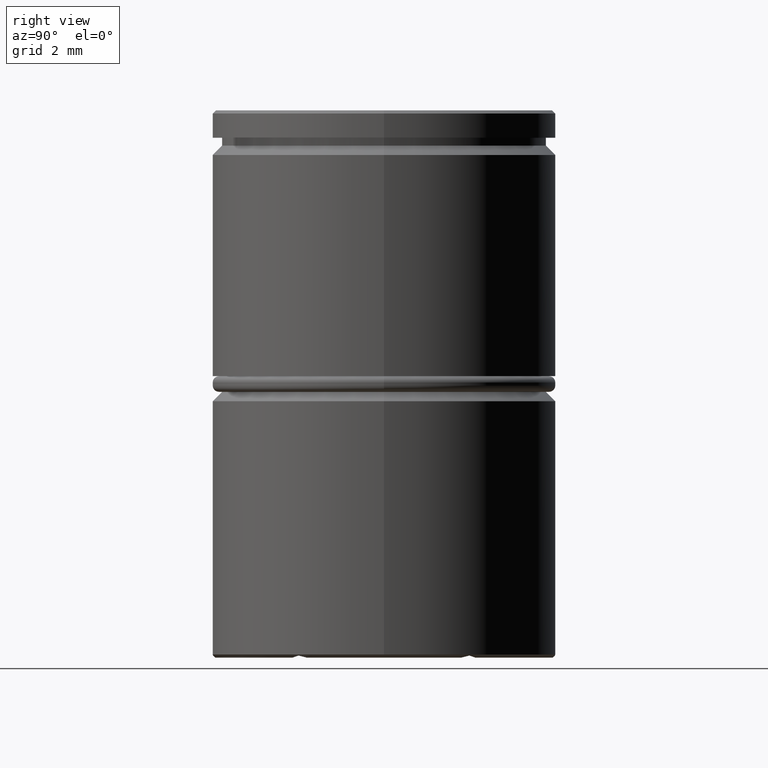
[diagram: clean part render]
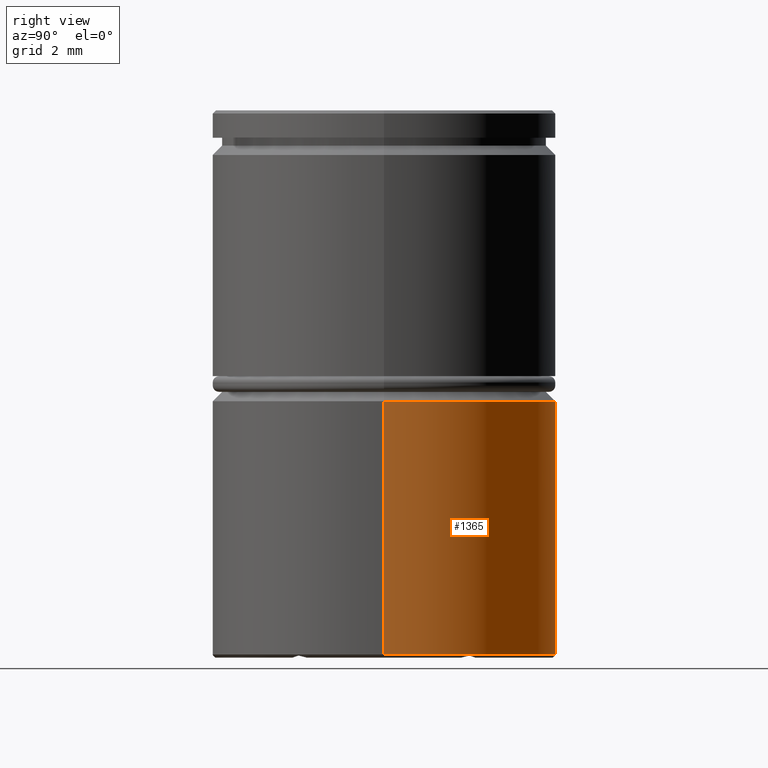
[diagram: same view with one face highlighted and labeled with its STEP entity id]
A machine part, right view. The second image highlights one B-rep face of the part: STEP entity #1365.
In plain terms, the highlighted cylindrical surface (partial cylindrical patch) has radius 5.5 mm, axis along (-0, -0, 1).
Its self-contained STEP definition (entity closure, byte-faithful):
#17 = VECTOR ( 'NONE', #810, 1000.000000000000000 ) ;
#37 = DIRECTION ( 'NONE',  ( -0.000000000000000000, -0.000000000000000000, 1.000000000000000000 ) ) ;
#82 = AXIS2_PLACEMENT_3D ( 'NONE', #429, #1035, #420 ) ;
#107 = VERTEX_POINT ( 'NONE', #663 ) ;
#158 = FACE_OUTER_BOUND ( 'NONE', #1224, .T. ) ;
#209 = VERTEX_POINT ( 'NONE', #1284 ) ;
#278 = CARTESIAN_POINT ( 'NONE',  ( 0.000000000000000000, 0.000000000000000000, 0.000000000000000000 ) ) ;
#389 = LINE ( 'NONE', #486, #17 ) ;
#420 = DIRECTION ( 'NONE',  ( 1.000000000000000000, 0.000000000000000000, 0.000000000000000000 ) ) ;
#429 = CARTESIAN_POINT ( 'NONE',  ( 0.000000000000000000, 0.000000000000000000, -9.299999999999998934 ) ) ;
#462 = ORIENTED_EDGE ( 'NONE', *, *, #919, .F. ) ;
#486 = CARTESIAN_POINT ( 'NONE',  ( 5.500000000000000000, 0.000000000000000000, 0.000000000000000000 ) ) ;
#505 = DIRECTION ( 'NONE',  ( -0.000000000000000000, -0.000000000000000000, 1.000000000000000000 ) ) ;
#522 = VERTEX_POINT ( 'NONE', #830 ) ;
#555 = VERTEX_POINT ( 'NONE', #961 ) ;
#604 = AXIS2_PLACEMENT_3D ( 'NONE', #278, #1221, #893 ) ;
#645 = DIRECTION ( 'NONE',  ( -1.000000000000000000, 0.000000000000000000, 0.000000000000000000 ) ) ;
#663 = CARTESIAN_POINT ( 'NONE',  ( -5.500000000000000000, 6.735557395310442023E-16, -17.40000000000000568 ) ) ;
#686 = CIRCLE ( 'NONE', #82, 5.500000000000000000 ) ;
#734 = LINE ( 'NONE', #855, #865 ) ;
#778 = AXIS2_PLACEMENT_3D ( 'NONE', #1300, #37, #645 ) ;
#810 = DIRECTION ( 'NONE',  ( -0.000000000000000000, -0.000000000000000000, 1.000000000000000000 ) ) ;
#830 = CARTESIAN_POINT ( 'NONE',  ( -5.500000000000000000, 6.735557395310442023E-16, -9.299999999999998934 ) ) ;
#855 = CARTESIAN_POINT ( 'NONE',  ( -5.500000000000000000, 6.735557395310442023E-16, 0.000000000000000000 ) ) ;
#865 = VECTOR ( 'NONE', #505, 1000.000000000000000 ) ;
#893 = DIRECTION ( 'NONE',  ( 1.000000000000000000, 0.000000000000000000, 0.000000000000000000 ) ) ;
#919 = EDGE_CURVE ( 'NONE', #209, #555, #389, .T. ) ;
#961 = CARTESIAN_POINT ( 'NONE',  ( 5.500000000000000000, 0.000000000000000000, -9.299999999999998934 ) ) ;
#990 = ORIENTED_EDGE ( 'NONE', *, *, #1050, .T. ) ;
#1004 = ORIENTED_EDGE ( 'NONE', *, *, #1049, .T. ) ;
#1035 = DIRECTION ( 'NONE',  ( 0.000000000000000000, 0.000000000000000000, -1.000000000000000000 ) ) ;
#1049 = EDGE_CURVE ( 'NONE', #522, #555, #686, .T. ) ;
#1050 = EDGE_CURVE ( 'NONE', #107, #522, #734, .T. ) ;
#1086 = ORIENTED_EDGE ( 'NONE', *, *, #1302, .T. ) ;
#1210 = CIRCLE ( 'NONE', #778, 5.500000000000000000 ) ;
#1221 = DIRECTION ( 'NONE',  ( -0.000000000000000000, -0.000000000000000000, 1.000000000000000000 ) ) ;
#1224 = EDGE_LOOP ( 'NONE', ( #1086, #990, #1004, #462 ) ) ;
#1284 = CARTESIAN_POINT ( 'NONE',  ( 5.500000000000000000, 0.000000000000000000, -17.40000000000000568 ) ) ;
#1300 = CARTESIAN_POINT ( 'NONE',  ( 0.000000000000000000, 0.000000000000000000, -17.40000000000000568 ) ) ;
#1302 = EDGE_CURVE ( 'NONE', #209, #107, #1210, .T. ) ;
#1320 = CYLINDRICAL_SURFACE ( 'NONE', #604, 5.500000000000000000 ) ;
#1365 = ADVANCED_FACE ( 'NONE', ( #158 ), #1320, .T. ) ;